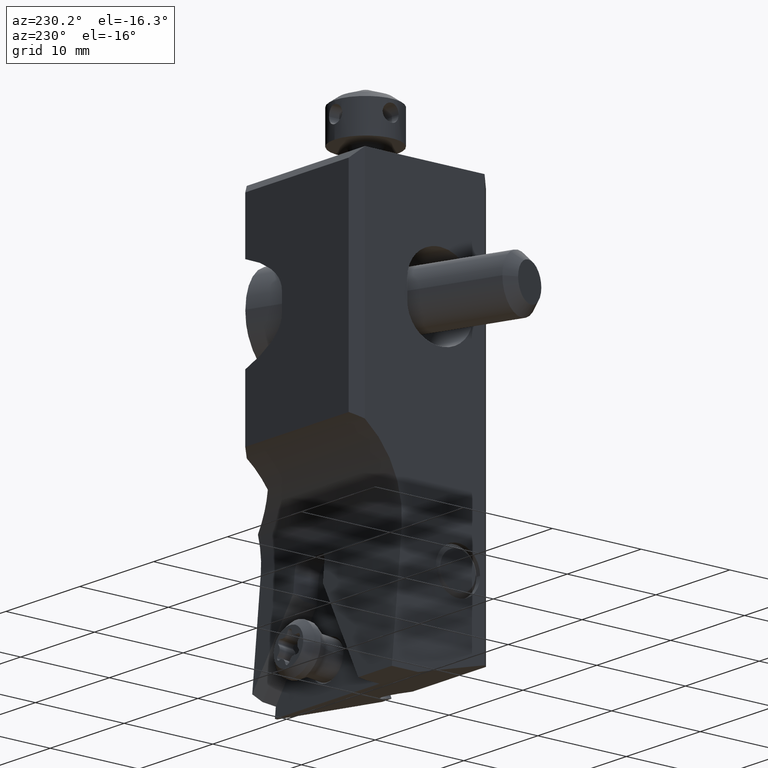
[diagram: clean part render]
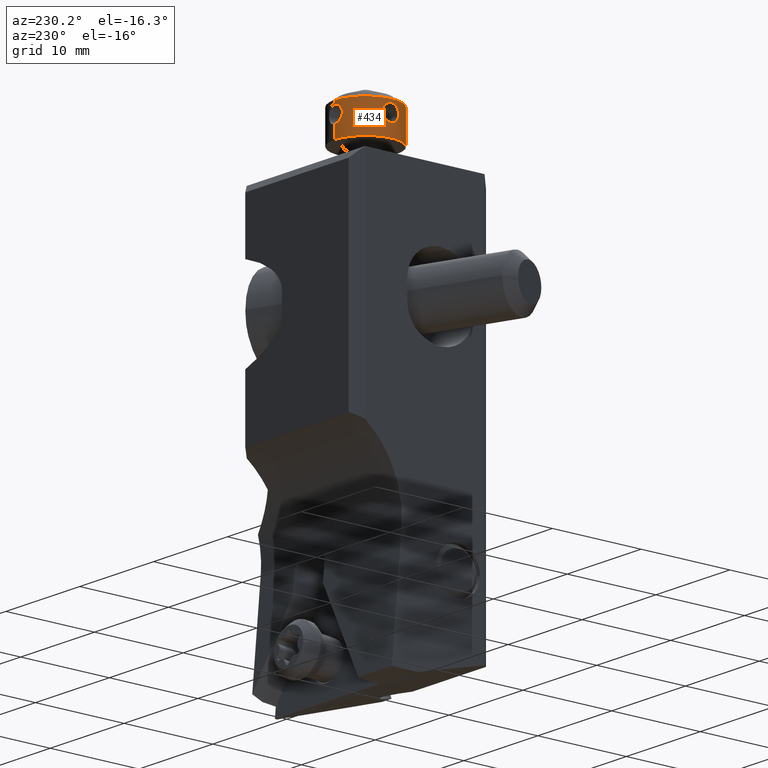
[diagram: same view with one face highlighted and labeled with its STEP entity id]
A machine part, auxiliary view. The second image highlights one B-rep face of the part: STEP entity #434.
In plain terms, the highlighted cylindrical surface (partial cylindrical patch) has radius 3.5 mm, axis along (0, 0, 1).
Its self-contained STEP definition (entity closure, byte-faithful):
#80=B_SPLINE_CURVE_WITH_KNOTS('',3,(#4477,#4478,#4479,#4480,#4481,#4482,
#4483,#4484,#4485,#4486,#4487,#4488,#4489,#4490,#4491,#4492,#4493,#4494,
#4495,#4496,#4497,#4498),.UNSPECIFIED.,.F.,.F.,(4,1,1,1,1,1,1,1,1,1,1,1,
1,1,1,1,1,1,1,4),(0.,0.05263157894737,0.1052631578947,0.1578947368421,0.2105263157895,
0.2631578947368,0.3157894736842,0.3684210526316,0.4210526315789,0.4736842105263,
0.5263157894737,0.5789473684211,0.6315789473684,0.6842105263158,0.7368421052632,
0.7894736842105,0.8421052631579,0.8947368421053,0.9473684210526,1.),
 .UNSPECIFIED.);
#81=B_SPLINE_CURVE_WITH_KNOTS('',3,(#4500,#4501,#4502,#4503,#4504,#4505,
#4506,#4507,#4508,#4509,#4510,#4511,#4512,#4513,#4514,#4515,#4516,#4517,
#4518,#4519,#4520,#4521),.UNSPECIFIED.,.F.,.F.,(4,1,1,1,1,1,1,1,1,1,1,1,
1,1,1,1,1,1,1,4),(0.,0.05263157894737,0.1052631578947,0.1578947368421,0.2105263157895,
0.2631578947368,0.3157894736842,0.3684210526316,0.4210526315789,0.4736842105263,
0.5263157894737,0.5789473684211,0.6315789473684,0.6842105263158,0.7368421052632,
0.7894736842105,0.8421052631579,0.8947368421053,0.9473684210526,1.),
 .UNSPECIFIED.);
#82=B_SPLINE_CURVE_WITH_KNOTS('',3,(#4522,#4523,#4524,#4525,#4526,#4527,
#4528,#4529,#4530,#4531,#4532,#4533,#4534,#4535,#4536,#4537,#4538,#4539,
#4540,#4541,#4542,#4543),.UNSPECIFIED.,.F.,.F.,(4,1,1,1,1,1,1,1,1,1,1,1,
1,1,1,1,1,1,1,4),(0.,0.05263157894737,0.1052631578947,0.1578947368421,0.2105263157895,
0.2631578947368,0.3157894736842,0.3684210526316,0.4210526315789,0.4736842105263,
0.5263157894737,0.5789473684211,0.6315789473684,0.6842105263158,0.7368421052632,
0.7894736842105,0.8421052631579,0.8947368421053,0.9473684210526,1.),
 .UNSPECIFIED.);
#83=B_SPLINE_CURVE_WITH_KNOTS('',3,(#4545,#4546,#4547,#4548,#4549,#4550,
#4551,#4552,#4553,#4554,#4555,#4556,#4557,#4558,#4559,#4560,#4561,#4562,
#4563,#4564,#4565,#4566),.UNSPECIFIED.,.F.,.F.,(4,1,1,1,1,1,1,1,1,1,1,1,
1,1,1,1,1,1,1,4),(0.,0.05263157894737,0.1052631578947,0.1578947368421,0.2105263157895,
0.2631578947368,0.3157894736842,0.3684210526316,0.4210526315789,0.4736842105263,
0.5263157894737,0.5789473684211,0.6315789473684,0.6842105263158,0.7368421052632,
0.7894736842105,0.8421052631579,0.8947368421053,0.9473684210526,1.),
 .UNSPECIFIED.);
#84=B_SPLINE_CURVE_WITH_KNOTS('',3,(#4567,#4568,#4569,#4570,#4571,#4572,
#4573,#4574,#4575,#4576,#4577,#4578,#4579,#4580,#4581,#4582,#4583,#4584,
#4585,#4586,#4587,#4588,#4589,#4590,#4591,#4592,#4593,#4594,#4595,#4596,
#4597),.UNSPECIFIED.,.F.,.F.,(4,3,3,3,3,3,3,3,3,3,4),(0.,0.10499181573253,
0.209833584549119,0.316913861721892,0.425643838817805,0.532012948903621,
0.635811937228342,0.740586222170035,0.848427228178288,0.956892987707003,
1.),.UNSPECIFIED.);
#85=B_SPLINE_CURVE_WITH_KNOTS('',3,(#4600,#4601,#4602,#4603,#4604,#4605,
#4606,#4607,#4608,#4609,#4610,#4611,#4612,#4613,#4614,#4615,#4616,#4617,
#4618,#4619,#4620,#4621,#4622,#4623,#4624,#4625,#4626,#4627,#4628,#4629,
#4630),.UNSPECIFIED.,.F.,.F.,(4,3,3,3,3,3,3,3,3,3,4),(0.,0.10499181573253,
0.209833584549119,0.316913861721892,0.425643838817805,0.532012948903621,
0.635811937228342,0.740586222170035,0.848427228178288,0.956892987707003,
1.),.UNSPECIFIED.);
#152=FACE_BOUND('',#762,.T.);
#153=FACE_BOUND('',#763,.T.);
#190=CYLINDRICAL_SURFACE('',#2837,3.5);
#296=CIRCLE('',#2826,3.5);
#302=CIRCLE('',#2835,3.5);
#434=ADVANCED_FACE('',(#152,#153),#190,.T.);
#762=EDGE_LOOP('',(#1611,#1612,#1613,#1614,#1615,#1616,#1617,#1618,#1619,
#1620));
#763=EDGE_LOOP('',(#1621,#1622));
#939=LINE('',#4302,#1113);
#940=LINE('',#4351,#1114);
#941=LINE('',#4352,#1115);
#942=LINE('',#4400,#1116);
#1113=VECTOR('',#3449,1.);
#1114=VECTOR('',#3450,1.);
#1115=VECTOR('',#3451,1.);
#1116=VECTOR('',#3452,1.);
#1611=ORIENTED_EDGE('',*,*,#2375,.F.);
#1612=ORIENTED_EDGE('',*,*,#2384,.T.);
#1613=ORIENTED_EDGE('',*,*,#2385,.F.);
#1614=ORIENTED_EDGE('',*,*,#2372,.F.);
#1615=ORIENTED_EDGE('',*,*,#2365,.T.);
#1616=ORIENTED_EDGE('',*,*,#2371,.F.);
#1617=ORIENTED_EDGE('',*,*,#2386,.T.);
#1618=ORIENTED_EDGE('',*,*,#2387,.F.);
#1619=ORIENTED_EDGE('',*,*,#2368,.F.);
#1620=ORIENTED_EDGE('',*,*,#2383,.T.);
#1621=ORIENTED_EDGE('',*,*,#2388,.F.);
#1622=ORIENTED_EDGE('',*,*,#2389,.F.);
#2057=VERTEX_POINT('',#4297);
#2058=VERTEX_POINT('',#4298);
#2059=VERTEX_POINT('',#4303);
#2060=VERTEX_POINT('',#4304);
#2062=VERTEX_POINT('',#4350);
#2063=VERTEX_POINT('',#4353);
#2065=VERTEX_POINT('',#4399);
#2066=VERTEX_POINT('',#4401);
#2071=VERTEX_POINT('',#4499);
#2072=VERTEX_POINT('',#4544);
#2073=VERTEX_POINT('',#4598);
#2074=VERTEX_POINT('',#4599);
#2365=EDGE_CURVE('',#2057,#2058,#296,.T.);
#2368=EDGE_CURVE('',#2059,#2060,#939,.T.);
#2371=EDGE_CURVE('',#2062,#2058,#940,.T.);
#2372=EDGE_CURVE('',#2057,#2063,#941,.T.);
#2375=EDGE_CURVE('',#2065,#2066,#942,.T.);
#2383=EDGE_CURVE('',#2059,#2066,#302,.T.);
#2384=EDGE_CURVE('',#2065,#2071,#80,.T.);
#2385=EDGE_CURVE('',#2063,#2071,#81,.T.);
#2386=EDGE_CURVE('',#2062,#2072,#82,.T.);
#2387=EDGE_CURVE('',#2060,#2072,#83,.T.);
#2388=EDGE_CURVE('',#2073,#2074,#84,.T.);
#2389=EDGE_CURVE('',#2074,#2073,#85,.T.);
#2826=AXIS2_PLACEMENT_3D('',#4296,#3441,#3442);
#2835=AXIS2_PLACEMENT_3D('',#4475,#3465,#3466);
#2837=AXIS2_PLACEMENT_3D('',#4631,#3469,#3470);
#3441=DIRECTION('',(0.,0.,1.));
#3442=DIRECTION('',(0.,1.,0.));
#3449=DIRECTION('',(0.,1.242033891488E-13,-1.));
#3450=DIRECTION('',(0.,0.,-1.));
#3451=DIRECTION('',(0.,0.,1.));
#3452=DIRECTION('',(0.,1.1942633572E-13,1.));
#3465=DIRECTION('',(0.,0.,-1.));
#3466=DIRECTION('',(0.,-1.,0.));
#3469=DIRECTION('',(0.,0.,1.));
#3470=DIRECTION('',(0.,1.,0.));
#4296=CARTESIAN_POINT('',(-8.,7.75,3.));
#4297=CARTESIAN_POINT('',(-8.,11.25,3.));
#4298=CARTESIAN_POINT('',(-8.,4.25,3.));
#4302=CARTESIAN_POINT('',(-8.,4.25,6.571851993258));
#4303=CARTESIAN_POINT('',(-8.,4.25,6.571851993258));
#4304=CARTESIAN_POINT('',(-8.,4.25,6.2));
#4350=CARTESIAN_POINT('',(-8.,4.25,4.4));
#4351=CARTESIAN_POINT('',(-8.,4.25,4.4));
#4352=CARTESIAN_POINT('',(-8.,11.25,3.));
#4353=CARTESIAN_POINT('',(-8.,11.25,4.4));
#4399=CARTESIAN_POINT('',(-8.,11.25,6.2));
#4400=CARTESIAN_POINT('',(-8.,11.25,6.2));
#4401=CARTESIAN_POINT('',(-8.,11.25,6.571851993258));
#4475=CARTESIAN_POINT('',(-8.,7.75,6.571851993258));
#4477=CARTESIAN_POINT('',(-8.,11.25,6.2));
#4478=CARTESIAN_POINT('',(-8.024471658624,11.25,6.2));
#4479=CARTESIAN_POINT('',(-8.073455264,11.24948539213,6.198001848277));
#4480=CARTESIAN_POINT('',(-8.146523104202,11.24718430483,6.189011253113));
#4481=CARTESIAN_POINT('',(-8.218806300674,11.2434001638,6.174038563061));
#4482=CARTESIAN_POINT('',(-8.289818574185,11.23821769554,6.153135012601));
#4483=CARTESIAN_POINT('',(-8.359209362136,11.23174433492,6.126328934734));
#4484=CARTESIAN_POINT('',(-8.426395878323,11.22414117996,6.093757595391));
#4485=CARTESIAN_POINT('',(-8.490934047643,11.21559316854,6.055557741492));
#4486=CARTESIAN_POINT('',(-8.552329286806,11.20631955478,6.011916160497));
#4487=CARTESIAN_POINT('',(-8.609922688951,11.19660070657,5.963245577127));
#4488=CARTESIAN_POINT('',(-8.663381463029,11.18668863166,5.9097763394));
#4489=CARTESIAN_POINT('',(-8.712061215702,11.17690960928,5.8521424876));
#4490=CARTESIAN_POINT('',(-8.755685383488,11.16753205864,5.790739803889));
#4491=CARTESIAN_POINT('',(-8.793907820213,11.15883401214,5.726119229445));
#4492=CARTESIAN_POINT('',(-8.826458038193,11.15106989701,5.65891324369));
#4493=CARTESIAN_POINT('',(-8.853247088579,11.14443204276,5.589487698267));
#4494=CARTESIAN_POINT('',(-8.874108225558,11.13910705663,5.518520407122));
#4495=CARTESIAN_POINT('',(-8.889046304512,11.13520982312,5.446295858175));
#4496=CARTESIAN_POINT('',(-8.89800821944,11.1328378369,5.373337429198));
#4497=CARTESIAN_POINT('',(-8.9,11.13230690506,5.324430404372));
#4498=CARTESIAN_POINT('',(-8.9,11.13230690506,5.3));
#4499=CARTESIAN_POINT('',(-8.9,11.13230690506,5.3));
#4500=CARTESIAN_POINT('',(-8.,11.25,4.4));
#4501=CARTESIAN_POINT('',(-8.024522578101,11.25,4.4));
#4502=CARTESIAN_POINT('',(-8.07343118582,11.24948532367,4.401998424504));
#4503=CARTESIAN_POINT('',(-8.14651642821,11.24718484999,4.410986600109));
#4504=CARTESIAN_POINT('',(-8.21880088617,11.2434004041,4.425960487351));
#4505=CARTESIAN_POINT('',(-8.289806617775,11.23821871042,4.446860844767));
#4506=CARTESIAN_POINT('',(-8.359205522265,11.23174477339,4.473669190797));
#4507=CARTESIAN_POINT('',(-8.426392720369,11.22414155212,4.506240796238));
#4508=CARTESIAN_POINT('',(-8.490929618478,11.21559380414,4.544439337218));
#4509=CARTESIAN_POINT('',(-8.552328050811,11.20631976916,4.58808276452));
#4510=CARTESIAN_POINT('',(-8.609922941664,11.19660066928,4.63675456795));
#4511=CARTESIAN_POINT('',(-8.663382795514,11.1866883707,4.690225173668));
#4512=CARTESIAN_POINT('',(-8.712061666806,11.17690952712,4.74785787883));
#4513=CARTESIAN_POINT('',(-8.755690584657,11.16753091777,4.80926796991));
#4514=CARTESIAN_POINT('',(-8.793911183365,11.15883322069,4.87388721599));
#4515=CARTESIAN_POINT('',(-8.826461860402,11.15106897553,4.941095068967));
#4516=CARTESIAN_POINT('',(-8.853252375478,11.14443071004,5.010527722582));
#4517=CARTESIAN_POINT('',(-8.874110235011,11.13910653557,5.081489097045));
#4518=CARTESIAN_POINT('',(-8.889049376708,11.13520901611,5.153716284486));
#4519=CARTESIAN_POINT('',(-8.898007984439,11.13283789705,5.226689938837));
#4520=CARTESIAN_POINT('',(-8.9,11.13230690506,5.275516003574));
#4521=CARTESIAN_POINT('',(-8.9,11.13230690506,5.3));
#4522=CARTESIAN_POINT('',(-8.,4.25,4.4));
#4523=CARTESIAN_POINT('',(-8.024471633167,4.25,4.4));
#4524=CARTESIAN_POINT('',(-8.073455191915,4.250514617518,4.401998190363));
#4525=CARTESIAN_POINT('',(-8.146521309634,4.252815617678,4.410988441061));
#4526=CARTESIAN_POINT('',(-8.218806198654,4.256599828721,4.42596140954));
#4527=CARTESIAN_POINT('',(-8.289817387802,4.261782199786,4.446864554273));
#4528=CARTESIAN_POINT('',(-8.359210981084,4.268255823247,4.473671728136));
#4529=CARTESIAN_POINT('',(-8.42639680318,4.275858932534,4.506242888013));
#4530=CARTESIAN_POINT('',(-8.490936374694,4.284407160739,4.544443769654));
#4531=CARTESIAN_POINT('',(-8.552330097498,4.29368057845,4.588084488322));
#4532=CARTESIAN_POINT('',(-8.6099244519,4.30339960171,4.636756005647));
#4533=CARTESIAN_POINT('',(-8.663382515024,4.313311577772,4.690224879112));
#4534=CARTESIAN_POINT('',(-8.712061988522,4.323090544898,4.747858391724));
#4535=CARTESIAN_POINT('',(-8.755687889331,4.332468495155,4.809264034853));
#4536=CARTESIAN_POINT('',(-8.793908700047,4.341166197138,4.873882514368));
#4537=CARTESIAN_POINT('',(-8.826459241869,4.348930393584,4.94108940811));
#4538=CARTESIAN_POINT('',(-8.853248080289,4.35556820838,5.010515344979));
#4539=CARTESIAN_POINT('',(-8.874108576496,4.360893034429,5.081481037932));
#4540=CARTESIAN_POINT('',(-8.889046621329,4.364790260216,5.153706166008));
#4541=CARTESIAN_POINT('',(-8.898008177999,4.367162152299,5.22666260841));
#4542=CARTESIAN_POINT('',(-8.9,4.367693094942,5.275569560392));
#4543=CARTESIAN_POINT('',(-8.9,4.367693094942,5.3));
#4544=CARTESIAN_POINT('',(-8.9,4.367693094942,5.3));
#4545=CARTESIAN_POINT('',(-8.,4.25,6.2));
#4546=CARTESIAN_POINT('',(-8.024522612453,4.25,6.2));
#4547=CARTESIAN_POINT('',(-8.073431292276,4.250514664925,6.198001621219));
#4548=CARTESIAN_POINT('',(-8.146518652582,4.252815245455,6.189013023181));
#4549=CARTESIAN_POINT('',(-8.218801233649,4.256599616967,6.174039432239));
#4550=CARTESIAN_POINT('',(-8.289808477361,4.261781452389,6.153138483071));
#4551=CARTESIAN_POINT('',(-8.359203657583,4.268255045835,6.126331566417));
#4552=CARTESIAN_POINT('',(-8.426391885746,4.275858345065,6.093759644201));
#4553=CARTESIAN_POINT('',(-8.490927230081,4.284405857086,6.055562222454));
#4554=CARTESIAN_POINT('',(-8.552327423542,4.29368012994,6.011917714676));
#4555=CARTESIAN_POINT('',(-8.609920580597,4.303398914476,5.963247587158));
#4556=CARTESIAN_POINT('',(-8.663382558553,4.313311573004,5.909775207133));
#4557=CARTESIAN_POINT('',(-8.712061280431,4.323090401881,5.852142462747));
#4558=CARTESIAN_POINT('',(-8.755688582168,4.332468636994,5.790735163973));
#4559=CARTESIAN_POINT('',(-8.793911286323,4.341166799647,5.726112676719));
#4560=CARTESIAN_POINT('',(-8.826461030432,4.348930825284,5.658906735494));
#4561=CARTESIAN_POINT('',(-8.853252113312,4.355569221976,5.589473177224));
#4562=CARTESIAN_POINT('',(-8.874110129462,4.360893437396,5.518511346235));
#4563=CARTESIAN_POINT('',(-8.889049381157,4.364790984871,5.446283761998));
#4564=CARTESIAN_POINT('',(-8.898008002567,4.367162107812,5.373309854987));
#4565=CARTESIAN_POINT('',(-8.9,4.367693094942,5.324483892306));
#4566=CARTESIAN_POINT('',(-8.9,4.367693094942,5.3));
#4567=CARTESIAN_POINT('',(-11.3823069050576,8.65,5.3));
#4568=CARTESIAN_POINT('',(-11.3823069050576,8.65,5.20113907042153));
#4569=CARTESIAN_POINT('',(-11.3868881309014,8.63321972880385,5.10092207051458));
#4570=CARTESIAN_POINT('',(-11.3949113497425,8.60122084525096,5.00772774231851));
#4571=CARTESIAN_POINT('',(-11.4029280265987,8.56924805299807,4.91460940306033));
#4572=CARTESIAN_POINT('',(-11.4145108390094,8.52128239169595,4.82594755173468));
#4573=CARTESIAN_POINT('',(-11.4269727895749,8.46123659882864,4.74850883915818));
#4574=CARTESIAN_POINT('',(-11.4396968023662,8.39992810362193,4.66944166871874));
#4575=CARTESIAN_POINT('',(-11.4535944548487,8.32435156709237,4.59989193342964));
#4576=CARTESIAN_POINT('',(-11.4654781423641,8.24036847859171,4.54532208512263));
#4577=CARTESIAN_POINT('',(-11.4775343154259,8.15516641922188,4.48996018383676));
#4578=CARTESIAN_POINT('',(-11.4877670641944,8.05884492782213,4.44850190486802));
#4579=CARTESIAN_POINT('',(-11.4937241514768,7.95950311068775,4.42472378838897));
#4580=CARTESIAN_POINT('',(-11.4995529124541,7.86230129381415,4.40145789502939));
#4581=CARTESIAN_POINT('',(-11.5014045182357,7.75945630609584,4.39450153609255));
#4582=CARTESIAN_POINT('',(-11.4988394474459,7.65987497020153,4.40452388138833));
#4583=CARTESIAN_POINT('',(-11.4963340667201,7.56261092563813,4.41431300332291));
#4584=CARTESIAN_POINT('',(-11.4895811804402,7.46581593627306,4.44051656279882));
#4585=CARTESIAN_POINT('',(-11.4800923814565,7.37723061213582,4.48082786700757));
#4586=CARTESIAN_POINT('',(-11.4705117639975,7.28778809106451,4.52152924402706));
#4587=CARTESIAN_POINT('',(-11.4579544113171,7.20429416356227,4.57764928835355));
#4588=CARTESIAN_POINT('',(-11.445189445221,7.13301565130237,4.64476697773833));
#4589=CARTESIAN_POINT('',(-11.4320600720564,7.05970232018716,4.71380070514853));
#4590=CARTESIAN_POINT('',(-11.4184357356985,6.99728997086711,4.79639114983453));
#4591=CARTESIAN_POINT('',(-11.4075445210363,6.95085024109654,4.88604388777971));
#4592=CARTESIAN_POINT('',(-11.3965983997471,6.90417639153316,4.97614859821775));
#4593=CARTESIAN_POINT('',(-11.3882113536931,6.87237168858722,5.07600848487481));
#4594=CARTESIAN_POINT('',(-11.3845408215607,6.85843764817641,5.17705052740741));
#4595=CARTESIAN_POINT('',(-11.3830632376876,6.85282845783129,5.21772530892921));
#4596=CARTESIAN_POINT('',(-11.3823069050576,6.85,5.25891369909232));
#4597=CARTESIAN_POINT('',(-11.3823069050576,6.85,5.3));
#4598=CARTESIAN_POINT('',(-11.3823069050576,8.65,5.3));
#4599=CARTESIAN_POINT('',(-11.3823069050576,6.85,5.3));
#4600=CARTESIAN_POINT('',(-11.3823069050576,6.85,5.3));
#4601=CARTESIAN_POINT('',(-11.3823069050576,6.85,5.39886092957848));
#4602=CARTESIAN_POINT('',(-11.3868881309014,6.86678027119615,5.49907792948542));
#4603=CARTESIAN_POINT('',(-11.3949113497425,6.89877915474904,5.59227225768149));
#4604=CARTESIAN_POINT('',(-11.4029280265987,6.93075194700193,5.68539059693967));
#4605=CARTESIAN_POINT('',(-11.4145108390094,6.97871760830405,5.77405244826532));
#4606=CARTESIAN_POINT('',(-11.4269727895749,7.03876340117136,5.85149116084182));
#4607=CARTESIAN_POINT('',(-11.4396968023662,7.10007189637807,5.93055833128126));
#4608=CARTESIAN_POINT('',(-11.4535944548487,7.17564843290763,6.00010806657036));
#4609=CARTESIAN_POINT('',(-11.4654781423641,7.25963152140829,6.05467791487737));
#4610=CARTESIAN_POINT('',(-11.4775343154259,7.34483358077812,6.11003981616324));
#4611=CARTESIAN_POINT('',(-11.4877670641944,7.44115507217787,6.15149809513198));
#4612=CARTESIAN_POINT('',(-11.4937241514768,7.54049688931225,6.17527621161103));
#4613=CARTESIAN_POINT('',(-11.4995529124541,7.63769870618585,6.19854210497061));
#4614=CARTESIAN_POINT('',(-11.5014045182357,7.74054369390416,6.20549846390745));
#4615=CARTESIAN_POINT('',(-11.4988394474459,7.84012502979847,6.19547611861167));
#4616=CARTESIAN_POINT('',(-11.4963340667201,7.93738907436187,6.18568699667709));
#4617=CARTESIAN_POINT('',(-11.4895811804402,8.03418406372694,6.15948343720118));
#4618=CARTESIAN_POINT('',(-11.4800923814565,8.12276938786418,6.11917213299243));
#4619=CARTESIAN_POINT('',(-11.4705117639975,8.21221190893549,6.07847075597294));
#4620=CARTESIAN_POINT('',(-11.4579544113171,8.29570583643773,6.02235071164645));
#4621=CARTESIAN_POINT('',(-11.445189445221,8.36698434869763,5.95523302226167));
#4622=CARTESIAN_POINT('',(-11.4320600720564,8.44029767981284,5.88619929485147));
#4623=CARTESIAN_POINT('',(-11.4184357356985,8.50271002913289,5.80360885016547));
#4624=CARTESIAN_POINT('',(-11.4075445210363,8.54914975890346,5.71395611222029));
#4625=CARTESIAN_POINT('',(-11.3965983997471,8.59582360846684,5.62385140178225));
#4626=CARTESIAN_POINT('',(-11.3882113536931,8.62762831141278,5.52399151512519));
#4627=CARTESIAN_POINT('',(-11.3845408215607,8.64156235182359,5.42294947259259));
#4628=CARTESIAN_POINT('',(-11.3830632376876,8.64717154216871,5.38227469107079));
#4629=CARTESIAN_POINT('',(-11.3823069050576,8.65,5.34108630090768));
#4630=CARTESIAN_POINT('',(-11.3823069050576,8.65,5.3));
#4631=CARTESIAN_POINT('',(-8.,7.75,2.928562960135));